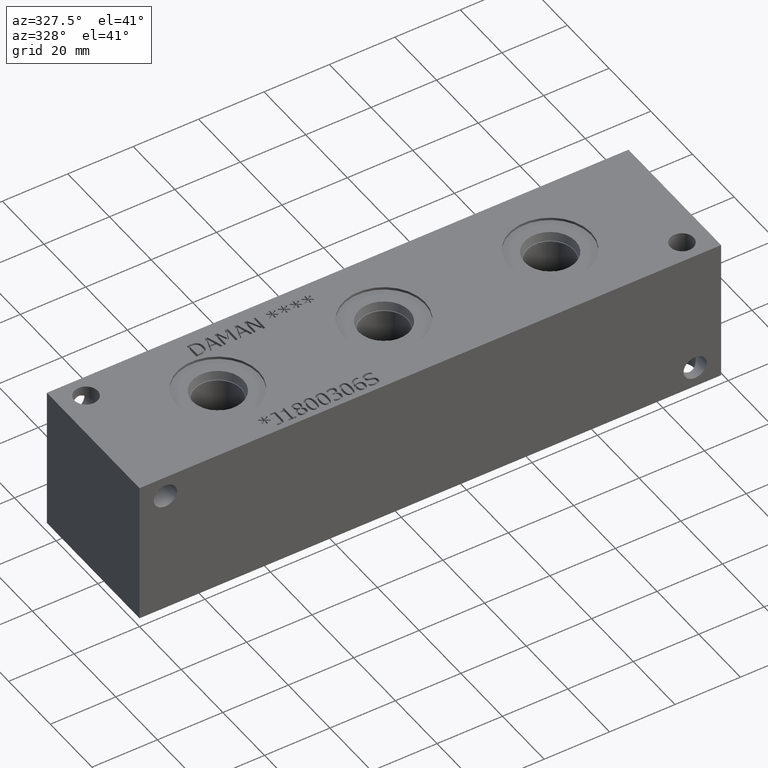
[diagram: clean part render]
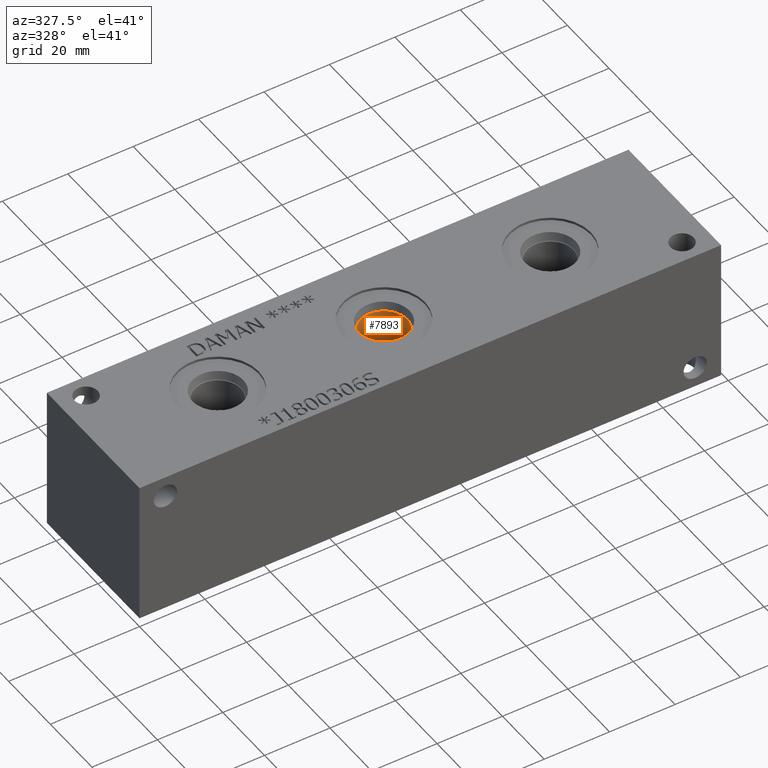
[diagram: same view with one face highlighted and labeled with its STEP entity id]
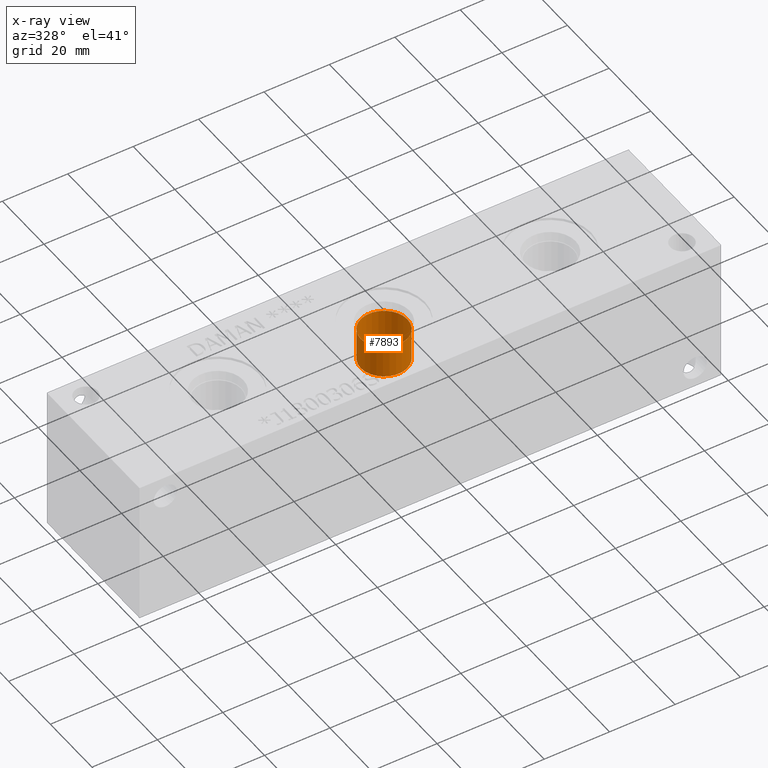
[diagram: x-ray of the same camera — body ghosted, the highlighted face saturated]
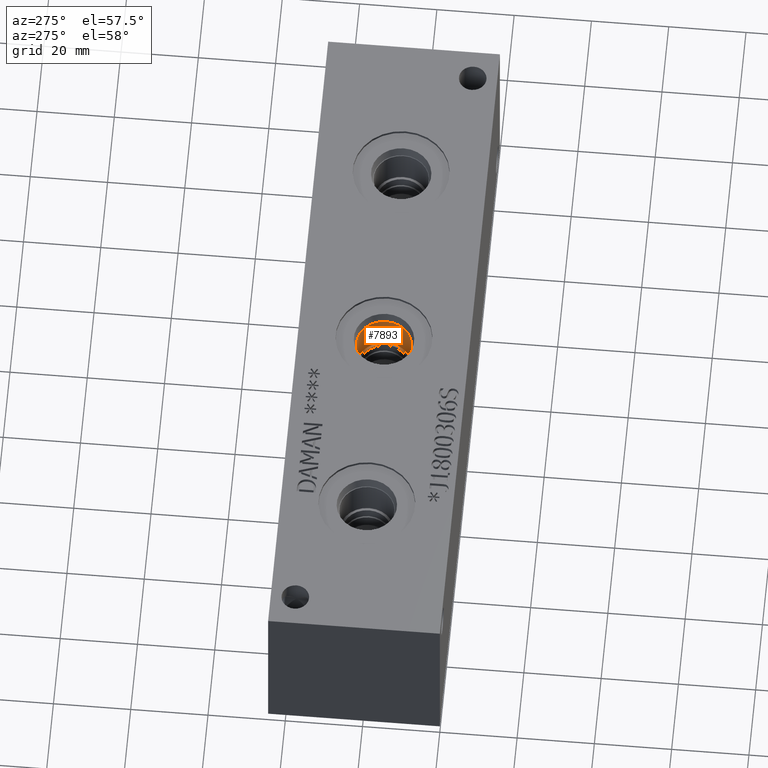
[diagram: same view with one face highlighted and labeled with its STEP entity id]
A machine part, auxiliary view. The second image highlights one B-rep face of the part: STEP entity #7893.
The next image is the same camera in x-ray: the body ghosted, the highlighted face saturated — about 0% of this face is hidden behind the body in this view.
A second angle (auxiliary view) of the same face is appended — the face is thin or edge-on in the first view.
In plain terms, the highlighted cylindrical surface (bore or boss wall) has radius 7.1374 mm, axis along (0, 0, 1).
Its self-contained STEP definition (entity closure, byte-faithful):
#73=CYLINDRICAL_SURFACE('',#8295,7.1374);
#179=CIRCLE('',#8292,7.1374);
#180=CIRCLE('',#8293,7.1374);
#182=CIRCLE('',#8296,7.1374);
#864=FACE_OUTER_BOUND('',#1310,.T.);
#1310=EDGE_LOOP('',(#6929,#6930,#6931,#6932,#6933));
#2044=LINE('',#13638,#2763);
#2763=VECTOR('',#9773,7.1374);
#3732=VERTEX_POINT('',#13629);
#3733=VERTEX_POINT('',#13630);
#3735=VERTEX_POINT('',#13636);
#4812=EDGE_CURVE('',#3732,#3733,#179,.T.);
#4813=EDGE_CURVE('',#3733,#3732,#180,.T.);
#4815=EDGE_CURVE('',#3735,#3735,#182,.T.);
#4816=EDGE_CURVE('',#3735,#3733,#2044,.T.);
#6929=ORIENTED_EDGE('',*,*,#4815,.F.);
#6930=ORIENTED_EDGE('',*,*,#4816,.T.);
#6931=ORIENTED_EDGE('',*,*,#4812,.F.);
#6932=ORIENTED_EDGE('',*,*,#4813,.F.);
#6933=ORIENTED_EDGE('',*,*,#4816,.F.);
#7893=ADVANCED_FACE('',(#864),#73,.F.);
#8292=AXIS2_PLACEMENT_3D('',#13631,#9763,#9764);
#8293=AXIS2_PLACEMENT_3D('',#13632,#9765,#9766);
#8295=AXIS2_PLACEMENT_3D('',#13635,#9769,#9770);
#8296=AXIS2_PLACEMENT_3D('',#13637,#9771,#9772);
#9763=DIRECTION('center_axis',(0.,0.,1.));
#9764=DIRECTION('ref_axis',(1.,0.,0.));
#9765=DIRECTION('center_axis',(0.,0.,1.));
#9766=DIRECTION('ref_axis',(1.,0.,0.));
#9769=DIRECTION('center_axis',(0.,0.,1.));
#9770=DIRECTION('ref_axis',(1.,0.,0.));
#9771=DIRECTION('center_axis',(0.,0.,-1.));
#9772=DIRECTION('ref_axis',(1.,0.,0.));
#9773=DIRECTION('',(0.,0.,-1.));
#13629=CARTESIAN_POINT('',(96.0374,22.225,30.9626));
#13630=CARTESIAN_POINT('',(81.7626,22.225,30.9626));
#13631=CARTESIAN_POINT('Origin',(88.9,22.225,30.9626));
#13632=CARTESIAN_POINT('Origin',(88.9,22.225,30.9626));
#13635=CARTESIAN_POINT('Origin',(88.9,22.225,37.7063));
#13636=CARTESIAN_POINT('',(81.7626,22.225,41.021));
#13637=CARTESIAN_POINT('Origin',(88.9,22.225,41.021));
#13638=CARTESIAN_POINT('',(81.7626,22.225,37.7063));